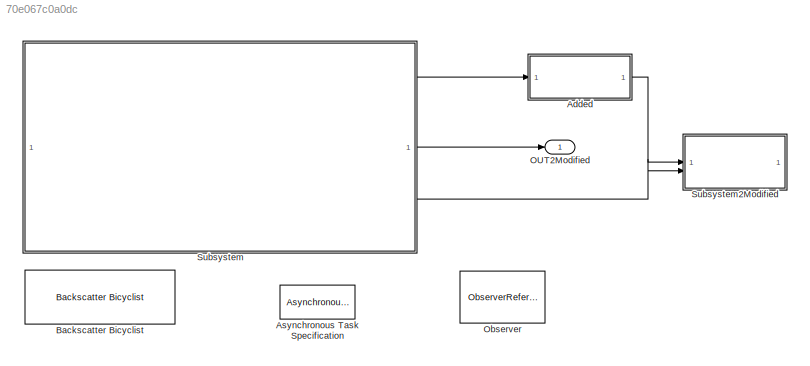
MODEL slx_70e067c0a0dc
KIND model
CONFIG AbsTol = auto
CONFIG EnableMultiTasking = off
CONFIG FixedStep = auto
CONFIG MaxStep = auto
CONFIG MinStep = auto
CONFIG RelTol = 1e-3
CONFIG SampleTimeConstraint = Unconstrained
CONFIG SolverName = VariableStepAuto
CONFIG StartTime = 0.0
CONFIG StopTime = 10.0
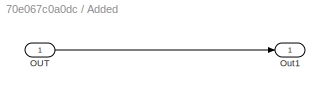
BLOCK [SubSystem] Added
BLOCK [Inport] Added/OUT
BLOCK [Outport] Added/Out1
BLOCK [AsynchronousTaskSpecification] Asynchronous Task Specification
BLOCK [Reference] Backscatter Bicyclist  REF=radarlib/Backscatter Bicyclist
  SourceBlock = radarlib/Backscatter Bicyclist
  SourceType = Backscatter Bicyclist
BLOCK [Outport] OUT2Modified
BLOCK [ObserverReference] Observer
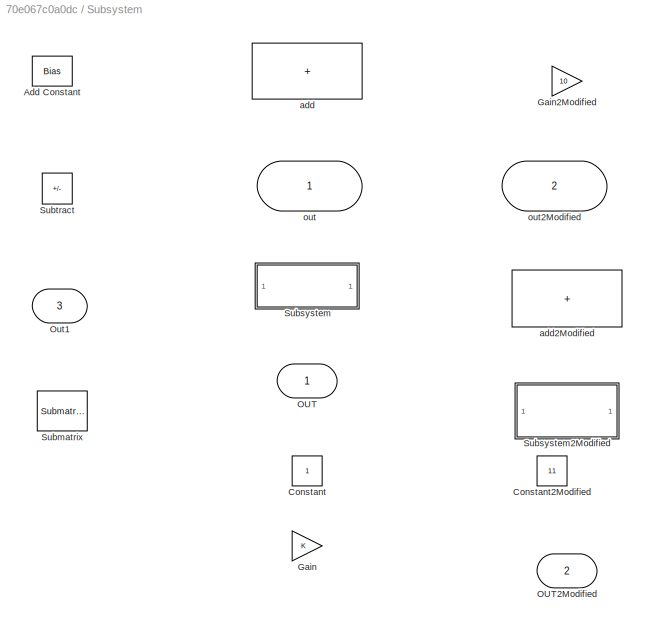
BLOCK [SubSystem] Subsystem
BLOCK [Bias] Subsystem/Add Constant
  Bias = 1
  SaturateOnIntegerOverflow = off
BLOCK [Constant] Subsystem/Constant
BLOCK [Constant] Subsystem/Constant2Modified
  Value = 11
BLOCK [Gain] Subsystem/Gain
BLOCK [Gain] Subsystem/Gain2Modified
  Gain = 10
  NameLocation = top
BLOCK [Outport] Subsystem/OUT
BLOCK [Outport] Subsystem/OUT2Modified
  Port = 2
BLOCK [Outport] Subsystem/Out1
  Port = 3
  VectorParamsAs1DForOutWhenUnconnected = off
BLOCK [Reference] Subsystem/Submatrix  REF=matrix_library/Submatrix
  LibrarySourceBlock = simulink/Matrix\nOperations/Submatrix
  SourceBlock = matrix_library/Submatrix
  SourceType = Submatrix
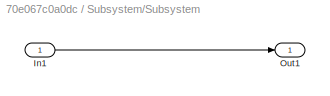
BLOCK [SubSystem] Subsystem/Subsystem
BLOCK [Inport] Subsystem/Subsystem/In1
BLOCK [Outport] Subsystem/Subsystem/Out1
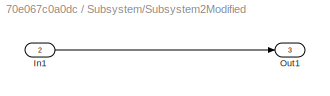
BLOCK [SubSystem] Subsystem/Subsystem2Modified
BLOCK [Inport] Subsystem/Subsystem2Modified/In1
  Port = 2
BLOCK [Outport] Subsystem/Subsystem2Modified/Out1
  Port = 3
BLOCK [Sum] Subsystem/Subtract
  IconShape = rectangular
  Inputs = +-
BLOCK [Sum] Subsystem/add
  IconShape = rectangular
BLOCK [Sum] Subsystem/add2Modified
  IconShape = rectangular
  Inputs = ++++
BLOCK [Inport] Subsystem/out
BLOCK [Inport] Subsystem/out2Modified
  Port = 2
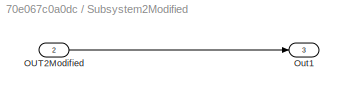
BLOCK [SubSystem] Subsystem2Modified
BLOCK [Inport] Subsystem2Modified/OUT2Modified
  Port = 2
BLOCK [Outport] Subsystem2Modified/Out1
  Port = 3
LINE Added/OUT:1 -> Added/Out1:1
LINE Added:1 -> Subsystem2Modified:1
LINE Subsystem/Subsystem/In1:1 -> Subsystem/Subsystem/Out1:1
LINE Subsystem/Subsystem2Modified/In1:1 -> Subsystem/Subsystem2Modified/Out1:1
LINE Subsystem2Modified/OUT2Modified:1 -> Subsystem2Modified/Out1:1
LINE Subsystem:1 -> Added:1
LINE Subsystem:2 -> OUT2Modified:1
LINE Subsystem:3 -> Subsystem2Modified:2
